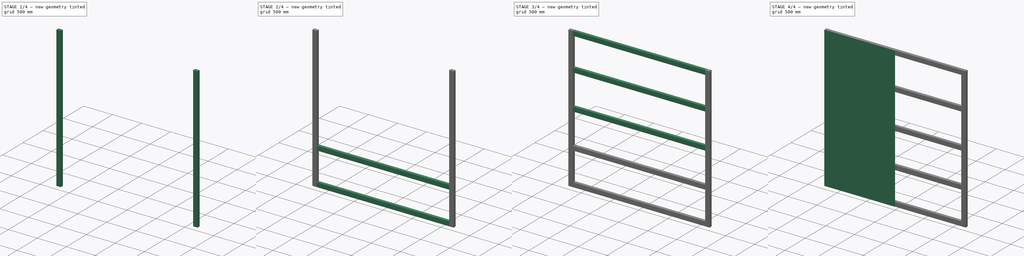
[diagram: build sequence overview — one tinted view per stage of 4, left to right]
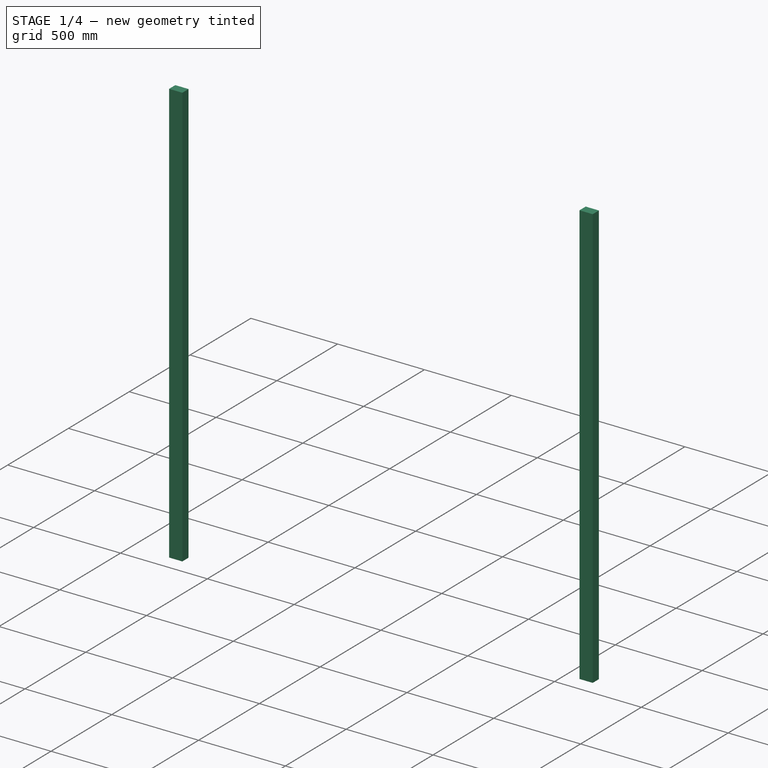
[diagram: stage 1 of 4 — iso view after this stage's code; geometry added in this stage tinted green]
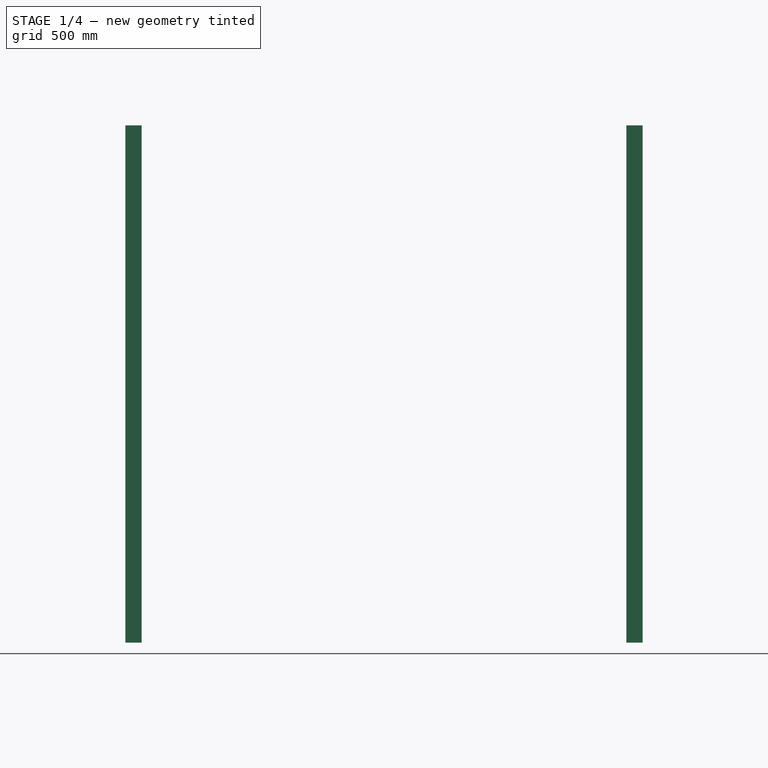
[diagram: stage 1 of 4 — front view after this stage's code; geometry added in this stage tinted green]
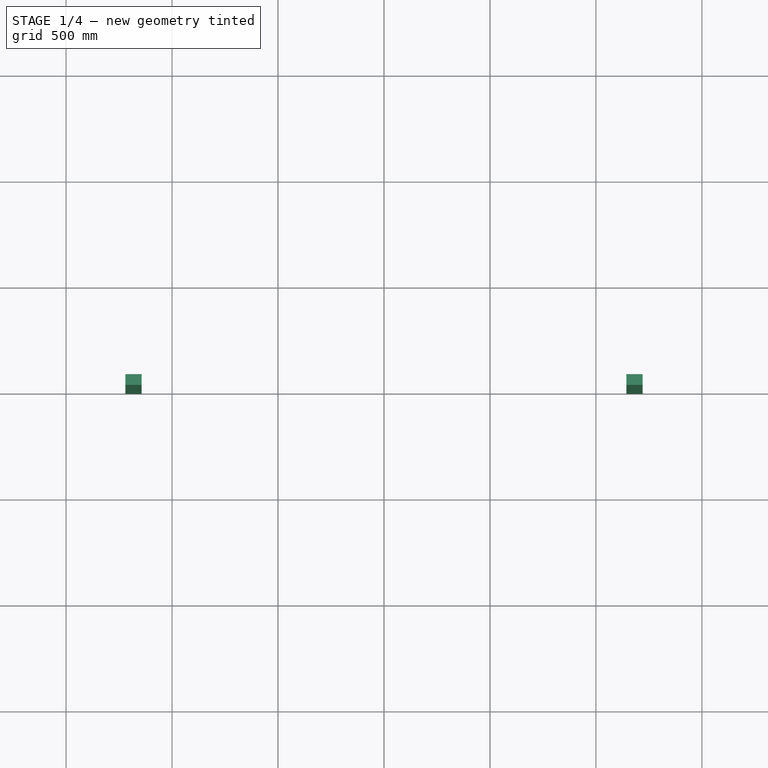
[diagram: stage 1 of 4 — top view after this stage's code; geometry added in this stage tinted green]
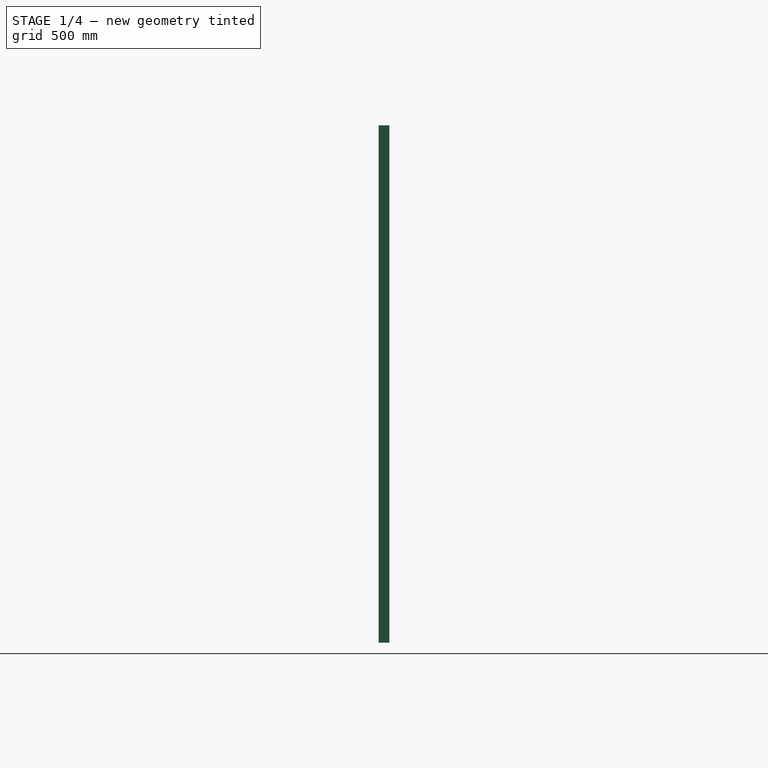
[diagram: stage 1 of 4 — right view after this stage's code; geometry added in this stage tinted green]
FCSTD DOCUMENT  (FreeCAD 0.21R33771 (Git))
Label: FMT_2024_reflector
License: All rights reserved
LicenseURL: http://en.wikipedia.org/wiki/All_rights_reserved
objects: Part::Extrusion×7, Spreadsheet::Sheet×2, Sketcher::SketchObject×2, PartDesign::Pad×1, PartDesign::Body×1, Part::Mirroring×1
note: 13 computed .brp shape members not serialized (recipe doc carries the construction recipe); baked Part::Feature solids carry a one-line shape summary decoded from their .brp

FEATURE [Part::Extrusion] Extrude005  label="vertical_post_left"
  Base = -> Sketch001
  Dir = (0,0,1)
  DirMode = 2
  FaceMakerClass = Part::FaceMakerBullseye
  LengthFwd = 2440
  LengthRev = 0
  Placement = pos=(1181.9,25.4,0) rot=(0,0,1;1.5708rad)
  Solid = true
  Symmetric = true
  expr: .Placement.Base.x = <<d>>.panel_width - <<d>>.profile_2x3_height / 2
  expr: .Placement.Base.y = <<d>>.profile_2x3_width / 2
  expr: LengthFwd = <<d>>.panel_height
FEATURE [Part::Extrusion] Extrude006  label="vertical_post_right"
  Base = -> Sketch001
  Dir = (0,0,1)
  DirMode = 2
  FaceMakerClass = Part::FaceMakerBullseye
  LengthFwd = 2440
  LengthRev = 0
  Placement = pos=(-1181.9,25.4,0) rot=(0,0,1;1.5708rad)
  Solid = true
  Symmetric = true
  expr: .Placement.Base.x = -(<<d>>.panel_width - <<d>>.profile_2x3_height / 2)
  expr: .Placement.Base.y = <<d>>.profile_2x3_width / 2
  expr: LengthFwd = <<d>>.panel_height
FEATURE [Spreadsheet::Sheet] Spreadsheet001  label="BOM"
  cells = A1='Item; B1='Quantity; C1='Cost/Unit; D1='Total Cost; E1='Link; F1='Comments; A2='Turnbuckle M16; B2=4; D2=25; E2='https://www.ebay.co.uk/itm/275171664696?hash=item4011826338:g:jucAAOSw22xiDjIf&amdata=enc%3AAQAIAAAAwMv%2FK89Emx5nN9n%2BDuYte%2B857oGZFu%2Fbt%2FozPLHgO9VXQm0p53P0q4yipXwo3N2rNtSWM3aFZhpicUcEvKqsJrscnIy%2FLn7htTpXb8%2B1y%2BFUXuGMtfkZcA3SvMM%2B3Qrt%2B9S88SuSm%2F2IW9dCg813a0urlc57w1iYvxxIFmZE4RhTtqppw1nMxQFF6tucKWeLk8OsULxM16inzX5n39SVhzvqcMN6oAPfIPsa5ujxmvpqsnZNUBZXyA89cnSEkAg5CQ%3D%3D%7Ctkp%3ABk9SR86no5GvYw; F2='Depending on how much it should be tensioned, it could be 2 or 4 per module; A3='Cable clamps M6 (pack of 10); B3=1; C3=3.99; D3==B3 * C3; E3='https://www.ebay.co.uk/itm/176211818636?hash=item29070af88c:g:JaoAAOSwi1NlIUwk&amdata=enc%3AAQAIAAAA8HcX7B7szZDhgQMEfklizR%2FJKWyt%2FVhWCI0MwiSS0P5DrGNTJrLGB2q0rxlONBTAi6CK%2FCu9Xuq0aCxIx9lfLjtkzLkbjrpyKeCmURnYDHguOjyINOSQY3McpR17xX4reBIp5AO731peRyQosX71cUXgHTyI6vkiScwrZMlA2YOs9iDGcbmTz%2BtPBwr37oEGhlCaVMOX983al5%2BYWz%2FMA6WXyTODuPJisUZKdMnH4gB%2FI%2BenTVYieXkKPsfr5jUBtkTA9ay6amboOa3cUFHG%2BThBR1hjvZJNqP6Wxx9zrUT%2BKncM13aRebBe1Sv3BP84BQ%3D%3D%7Ctkp%3ABk9SR-zX1pGvYw; A4='Steel wire rope 10m; B4=1; C4=16.78; D4==B4 * C4; E4='https://www.ebay.co.uk/itm/144647393147?hash=item21ada80f7b:g:QREAAOSwwjRafW1T&amdata=enc%3AAQAIAAAAwI7ALSP4aFcoNm36LKcryYIhf8gRqamXRfKnU%2FxiwRI0Zvz4GmQwdvUYf%2BFKK2%2FFuv%2BiirYG34PCXOPK9Z%2FuJgSPNmHdynhC%2Bn%2FXaWZIIU4819SNgEiPUniwV9nlUiMpsgCjraVIDqxbifP65p8c%2BGVnogMO9ht0%2FX1NFj4ZFKZ8MYGvV%2BDrJSJUA7J3K6kUQi94wmjrdUU3QcDJ1IUKig1DMnl3iAgVSNrTRntpZE1uu2E5z7W6740wgEiICZNZPw%3D%3D%7Ctkp%3ABk9SR-SF55GvYw; F4='Awkward choice of length. 5m be not enough for a reflector due to tolerances.; A5='Eye bolts 5mm x 50mm (pack of 4); B5=1; C5=7.15; D5==B5 * C5; E5='https://www.ebay.co.uk/itm/201396221999?hash=item2ee426782f:g:MAkAAOSwneRevZ8M&amdata=enc%3AAQAIAAAA4IxCm2zlKy%2BJ4p99rAwEsIdjKrjFI978swtvbsBRfbYNY3I80%2BI0%2BZdpyPDRVAbXWKKmTI3CFse7fgBjPPF8SRbT5hFDSUHy53fJWt%2BtETgu%2FG%2BOasmmBRR41lCEX2Tnt8nUavWVyitr6Wt8YXpsbAh%2Fkp9pl30UIoXey16Sbc5j8dhGumgNQ8H75oSTRkip0GZH6lKiJ8skUic8hur9u1sxFA%2Bq2iS2rxjdtr6pzvSuKgct%2BBG5EajGsPY8drvMIX6q4MHd%2BwIrgau3opKKRKTIC%2BiCx6vRiy9YVYVpfB2E%7Ctkp%3ABk9SR7jB95GvYw; A6='Thimbles (pack of 4); B6=1; C6=3.82; D6==B6 * C6; E6='https://www.ebay.co.uk/itm/154959865358?hash=item241453e60e:g:M2UAAOSwlx9b9VKi&amdata=enc%3AAQAIAAAA4CEeJan0aPV0vM78Kyi0xMw0STcBn4ExJGrqawElnPZRWyXuNCj93k%2FjCJihsU1W8%2BLINMNrX9%2FcbgLTc89JEzgC9912pz9xbEq072nUlZVEHEPBkZoVeq7AEn7FC5rhm0SOlqhVRFpMQfG9G86X5Ry0JqgNkJQrx8b2I4szTn59DKCslN9UBYQ2XorQviof%2B2WFVfjloXLgDLnTieGLtox%2Fufer1LV6R9HuwsLKiG%2BuktsoPMC14ND24plOs3irhDvVrw0W2YFj1VghBRiqTNJ5C9uPnZTEF6F0NmlQ4%2BkX%7Ctkp%3ABFBMlJSQkq9j; C8='Total; D8==D2 + D3 + D4 + D5 + D6
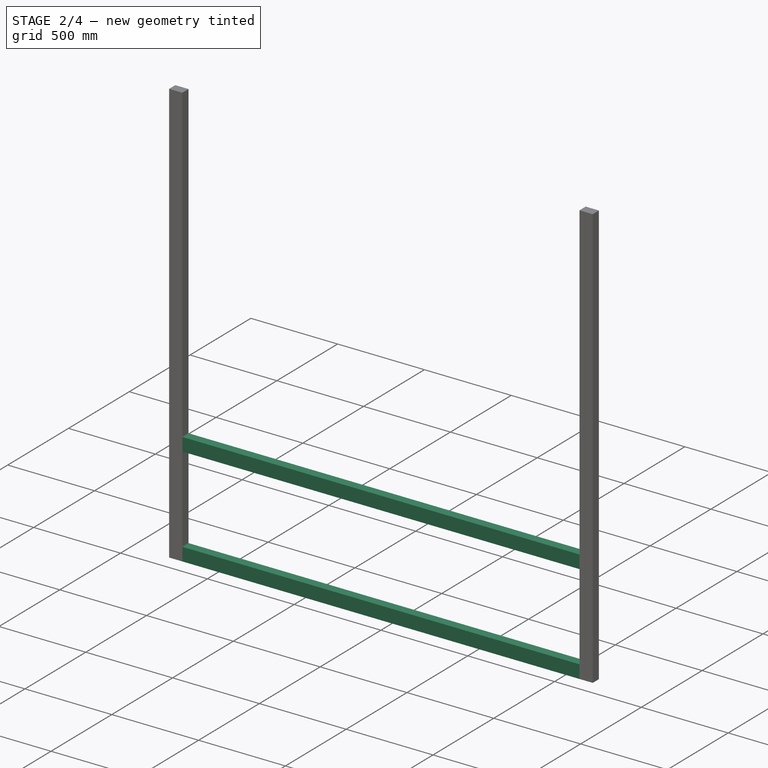
[diagram: stage 2 of 4 — iso view after this stage's code; geometry added in this stage tinted green]
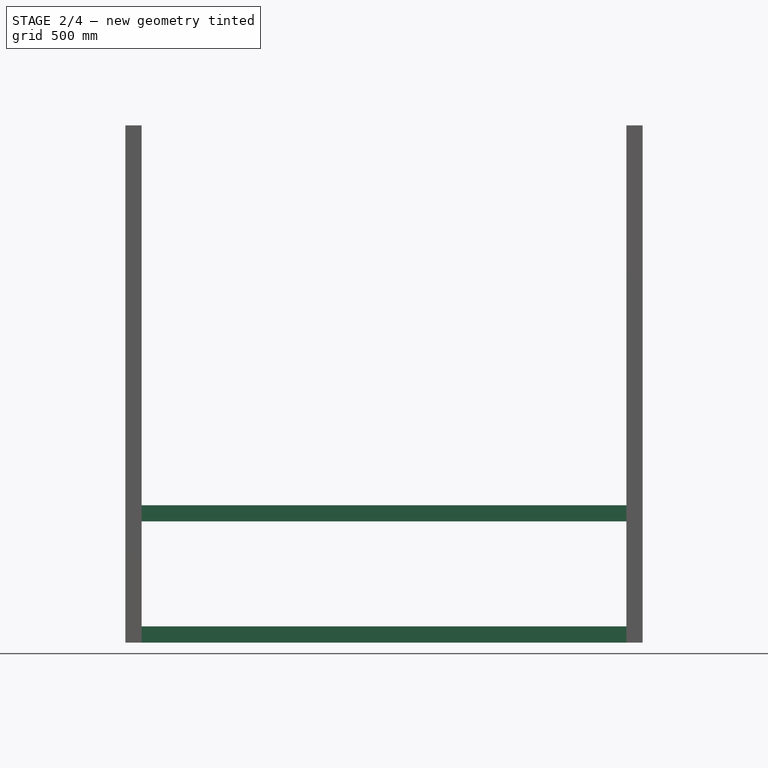
[diagram: stage 2 of 4 — front view after this stage's code; geometry added in this stage tinted green]
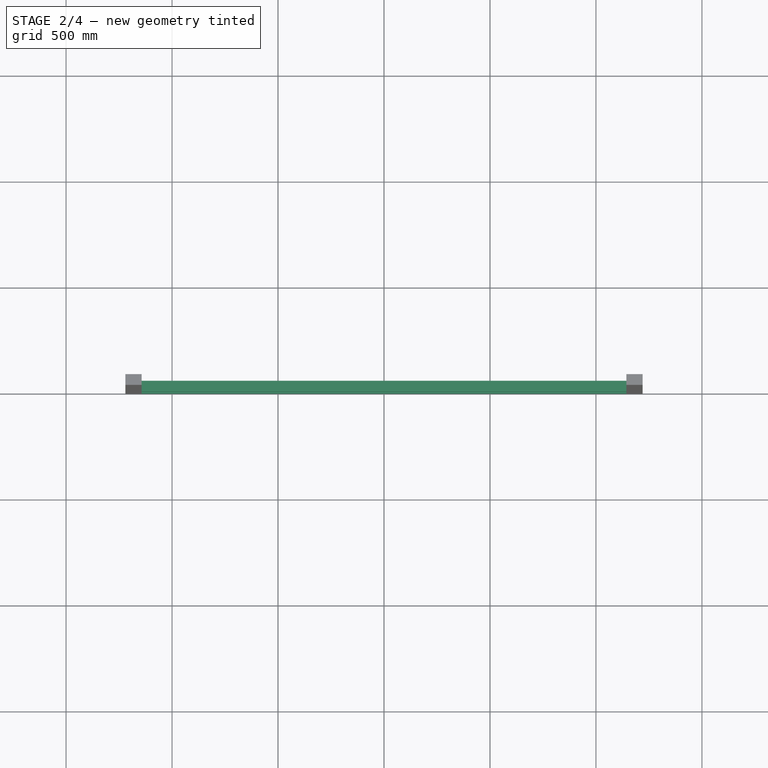
[diagram: stage 2 of 4 — top view after this stage's code; geometry added in this stage tinted green]
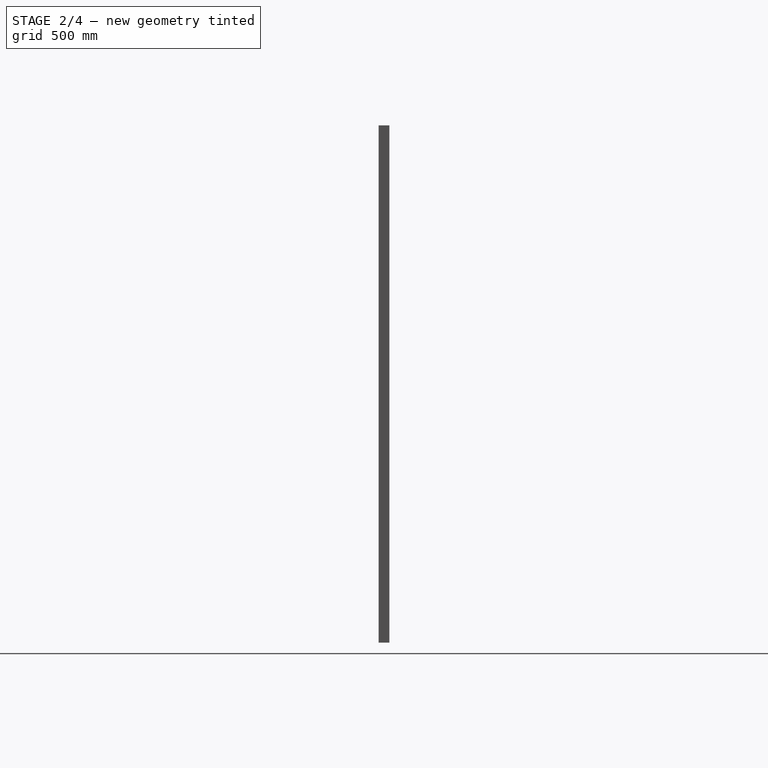
[diagram: stage 2 of 4 — right view after this stage's code; geometry added in this stage tinted green]
FEATURE [Part::Extrusion] Extrude003  label="horizontal_post_mid_bottom"
  Base = -> Sketch001
  Dir = (0,0,1)
  DirMode = 2
  FaceMakerClass = Part::FaceMakerBullseye
  LengthFwd = 2287.6
  LengthRev = 0
  Placement = pos=(0,25.4,-610) rot=(0.57735,0.57735,-0.57735;4.18879rad)
  Solid = true
  Symmetric = true
  expr: .Placement.Base.y = <<d>>.profile_2x3_width / 2
  expr: .Placement.Base.z = -<<d>>.panel_height / 4
  expr: LengthFwd = <<d>>.panel_width * 2 - <<d>>.profile_2x3_height * 2
FEATURE [Part::Extrusion] Extrude004  label="horizontal_post_bottom"
  Base = -> Sketch001
  Dir = (0,0,1)
  DirMode = 2
  FaceMakerClass = Part::FaceMakerBullseye
  LengthFwd = 2287.6
  LengthRev = 0
  Placement = pos=(0,25.4,-1181.9) rot=(0.57735,0.57735,-0.57735;4.18879rad)
  Solid = true
  Symmetric = true
  expr: .Placement.Base.y = <<d>>.profile_2x3_width / 2
  expr: .Placement.Base.z = -(<<d>>.panel_height / 2 - <<d>>.profile_2x3_height / 2)
  expr: LengthFwd = <<d>>.panel_width * 2 - <<d>>.profile_2x3_height * 2
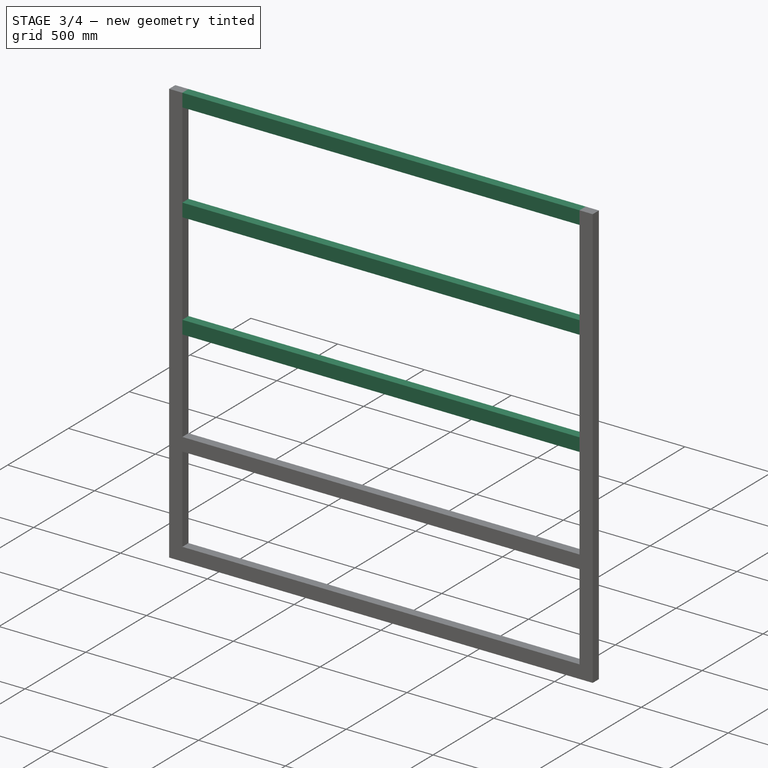
[diagram: stage 3 of 4 — iso view after this stage's code; geometry added in this stage tinted green]
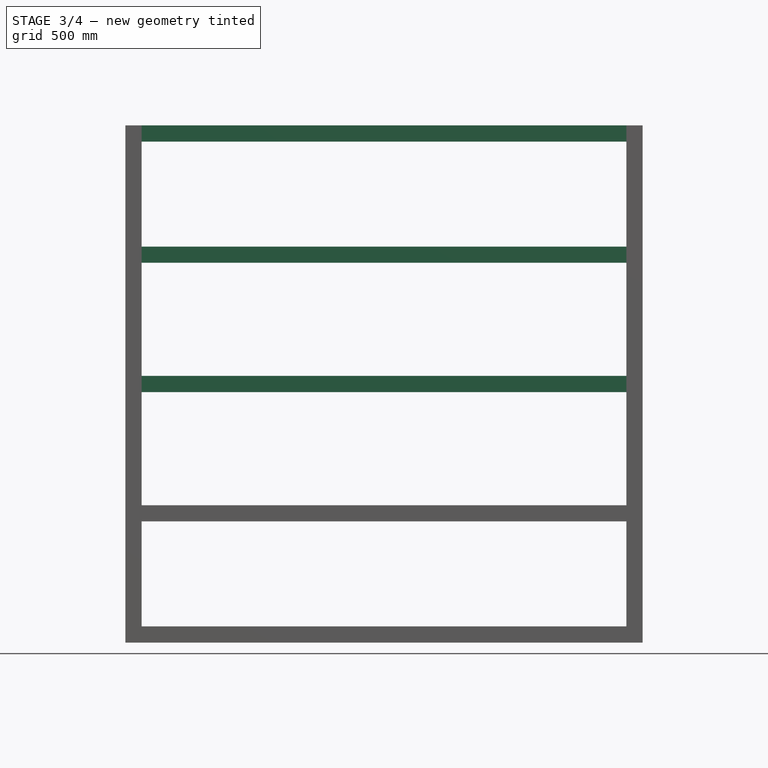
[diagram: stage 3 of 4 — front view after this stage's code; geometry added in this stage tinted green]
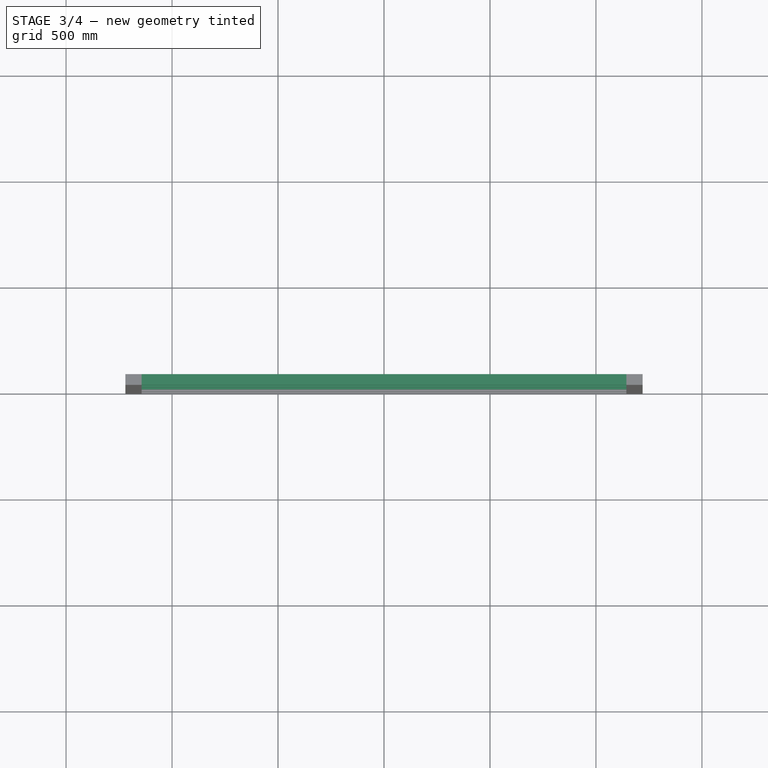
[diagram: stage 3 of 4 — top view after this stage's code; geometry added in this stage tinted green]
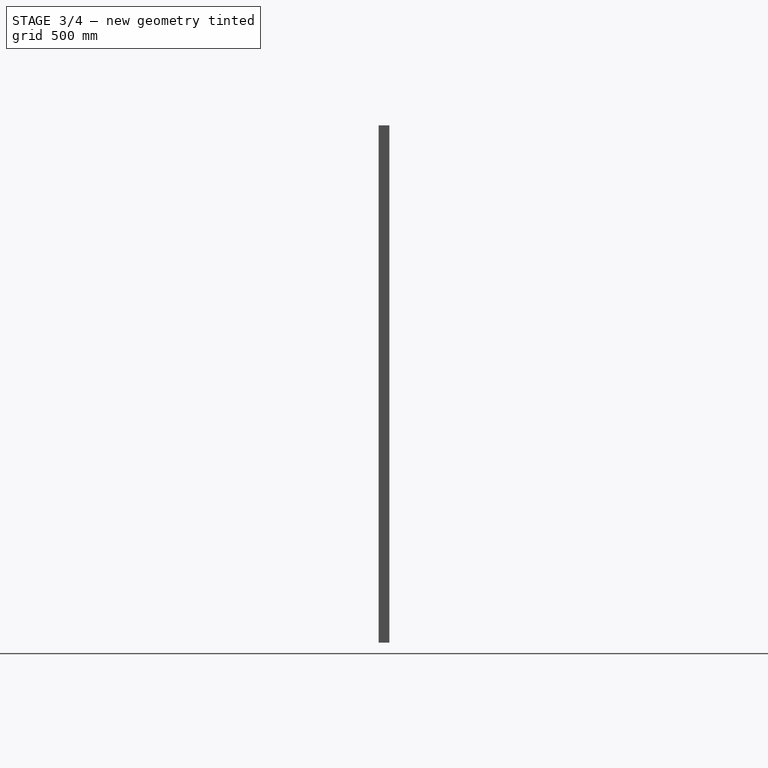
[diagram: stage 3 of 4 — right view after this stage's code; geometry added in this stage tinted green]
FEATURE [Sketcher::SketchObject] Sketch001  label="profile_2x3"
  FullyConstrained = true
  expr: Constraints[8] = <<d>>.profile_2x3_width
  expr: Constraints[9] = <<d>>.profile_2x3_height
  sketch-geometry (4):
    g0: LineSegment StartX=-25.4 StartY=38.1 StartZ=0 EndX=25.4 EndY=38.1 EndZ=0
    g1: LineSegment StartX=25.4 StartY=38.1 StartZ=0 EndX=25.4 EndY=-38.1 EndZ=0
    g2: LineSegment StartX=25.4 StartY=-38.1 StartZ=0 EndX=-25.4 EndY=-38.1 EndZ=0
    g3: LineSegment StartX=-25.4 StartY=-38.1 StartZ=0 EndX=-25.4 EndY=38.1 EndZ=0
  constraints (10):
    c: Coincident(g0,g1)
    c: Coincident(g1,g2)
    c: Coincident(g2,g3)
    c: Coincident(g3,g0)
    c: Horizontal(g2)
    c: Vertical(g3)
    c: Symmetric(g0,g1,g-1)
    c: Symmetric(g0,g0,g-2)
    c: DistanceX(g0,g0) = 50.8
    c: DistanceY(g1,g1) = 76.2
FEATURE [Part::Extrusion] Extrude  label="horizontal_post_mid"
  Base = -> Sketch001
  Dir = (0,0,1)
  DirMode = 2
  FaceMakerClass = Part::FaceMakerBullseye
  LengthFwd = 2287.6
  LengthRev = 0
  Placement = pos=(0,25.4,0) rot=(0.57735,0.57735,-0.57735;4.18879rad)
  Solid = true
  Symmetric = true
  expr: .Placement.Base.y = <<d>>.profile_2x3_width / 2
  expr: LengthFwd = <<d>>.panel_width * 2 - <<d>>.profile_2x3_height * 2
FEATURE [Part::Extrusion] Extrude001  label="horizontal_post_mid_top"
  Base = -> Sketch001
  Dir = (0,0,1)
  DirMode = 2
  FaceMakerClass = Part::FaceMakerBullseye
  LengthFwd = 2287.6
  LengthRev = 0
  Placement = pos=(0,25.4,610) rot=(0.57735,0.57735,-0.57735;4.18879rad)
  Solid = true
  Symmetric = true
  expr: .Placement.Base.y = <<d>>.profile_2x3_width / 2
  expr: .Placement.Base.z = <<d>>.panel_height / 4
  expr: LengthFwd = <<d>>.panel_width * 2 - <<d>>.profile_2x3_height * 2
FEATURE [Part::Extrusion] Extrude002  label="horizontal_post_top"
  Base = -> Sketch001
  Dir = (0,0,1)
  DirMode = 2
  FaceMakerClass = Part::FaceMakerBullseye
  LengthFwd = 2287.6
  LengthRev = 0
  Placement = pos=(0,25.4,1181.9) rot=(0.57735,0.57735,-0.57735;4.18879rad)
  Solid = true
  Symmetric = true
  expr: .Placement.Base.y = <<d>>.profile_2x3_width / 2
  expr: .Placement.Base.z = <<d>>.panel_height / 2 - <<d>>.profile_2x3_height / 2
  expr: LengthFwd = <<d>>.panel_width * 2 - <<d>>.profile_2x3_height * 2
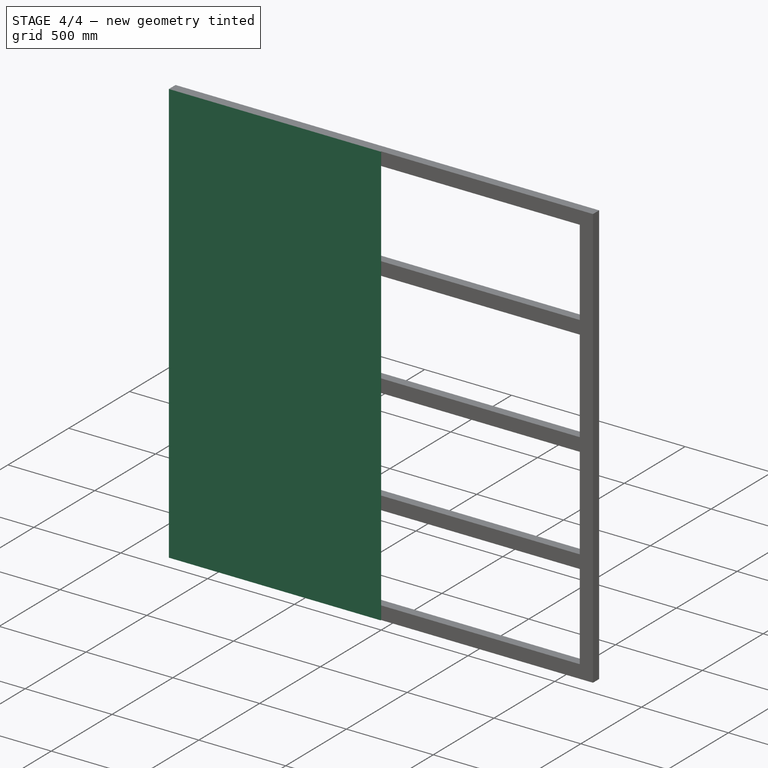
[diagram: stage 4 of 4 — iso view after this stage's code; geometry added in this stage tinted green]
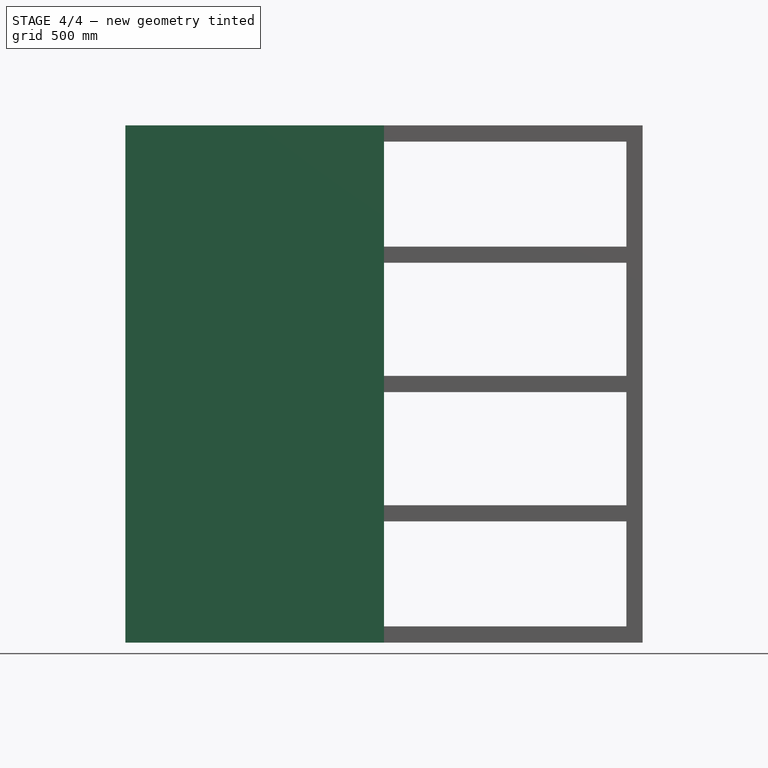
[diagram: stage 4 of 4 — front view after this stage's code; geometry added in this stage tinted green]
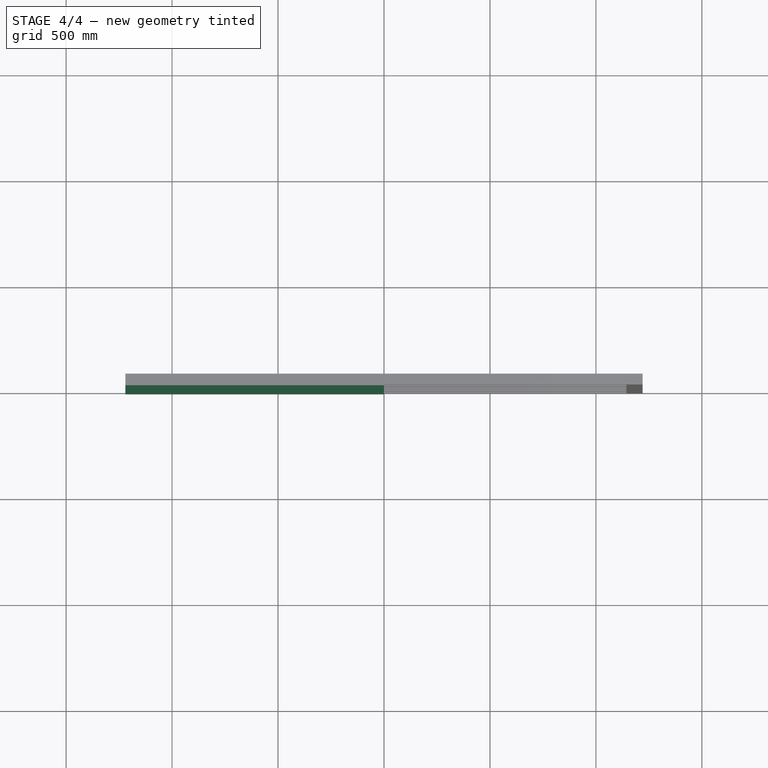
[diagram: stage 4 of 4 — top view after this stage's code; geometry added in this stage tinted green]
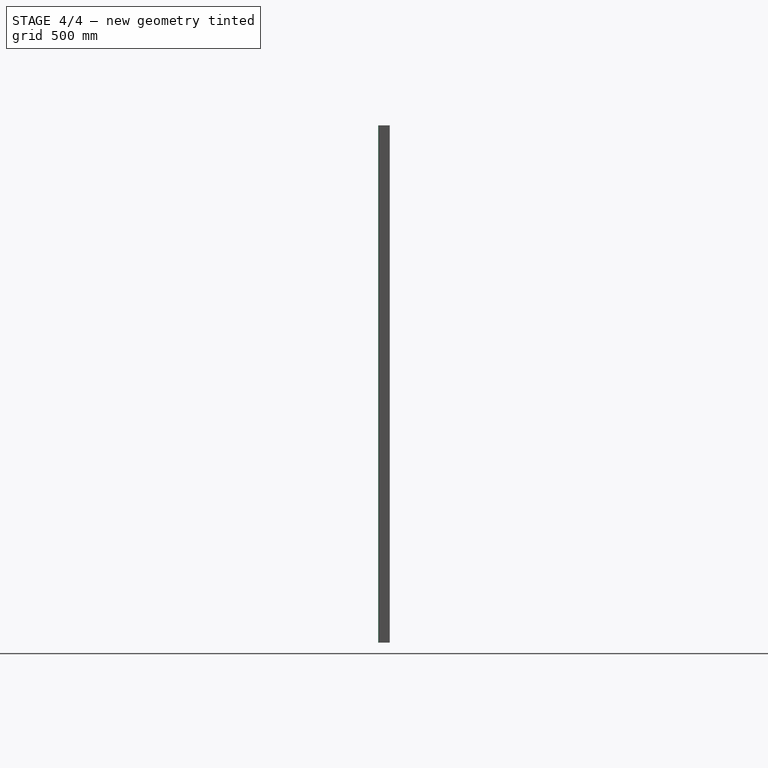
[diagram: stage 4 of 4 — right view after this stage's code; geometry added in this stage tinted green]
FEATURE [Spreadsheet::Sheet] Spreadsheet  label="d"
  cells = A1='panel_width; B1(panel_width)=1220; A2='panel_height; B2(panel_height)=2440; A3='panel_thickness; B3(panel_thickness)=4; A4='profile_2x3_width; B4(profile_2x3_width)=50.8; A5='profile_2x3_height; B5(profile_2x3_height)=76.2
FEATURE [Sketcher::SketchObject] Sketch
  FullyConstrained = true
  MapMode = 5
  Placement = pos=(0,0,0) rot=(1,0,0;1.5708rad)
  Support = -> [XZ_Plane]
  expr: Constraints[10] = <<d>>.panel_width
  expr: Constraints[9] = <<d>>.panel_height
  sketch-geometry (4):
    g0: LineSegment StartX=0 StartY=1220 StartZ=0 EndX=1220 EndY=1220 EndZ=0
    g1: LineSegment StartX=1220 StartY=1220 StartZ=0 EndX=1220 EndY=-1220 EndZ=0
    g2: LineSegment StartX=1220 StartY=-1220 StartZ=0 EndX=0 EndY=-1220 EndZ=0
    g3: LineSegment StartX=0 StartY=-1220 StartZ=0 EndX=0 EndY=1220 EndZ=0
  constraints (11):
    c: Coincident(g0,g1)
    c: Coincident(g1,g2)
    c: Coincident(g2,g3)
    c: Coincident(g3,g0)
    c: Horizontal(g0)
    c: Horizontal(g2)
    c: Vertical(g3)
    c: PointOnObject(g0,g-2)
    c: Symmetric(g0,g1,g-1)
    c: DistanceY(g1,g1) = 2440
    c: DistanceX(g0,g0) = 1220
FEATURE [PartDesign::Pad] Pad
  Direction = (0,-1,2e-16)
  Length = 4
  Length2 = 10
  Placement = pos=(0,0,0) rot=(1,0,0;1.5708rad)
  Profile = -> Sketch
  ReferenceAxis = -> Sketch [N_Axis]
  Type = 0
  expr: Length = <<d>>.panel_thickness
FEATURE [PartDesign::Body] Body  label="panel_left"
  Group = -> [Sketch,Pad]
  Origin = -> Origin
  Tip = -> Pad
FEATURE [Part::Mirroring] Part__Mirroring  label="panel_right"
  Base = (0,0,0)
  Normal = (1,0,0)
  Source = -> Body
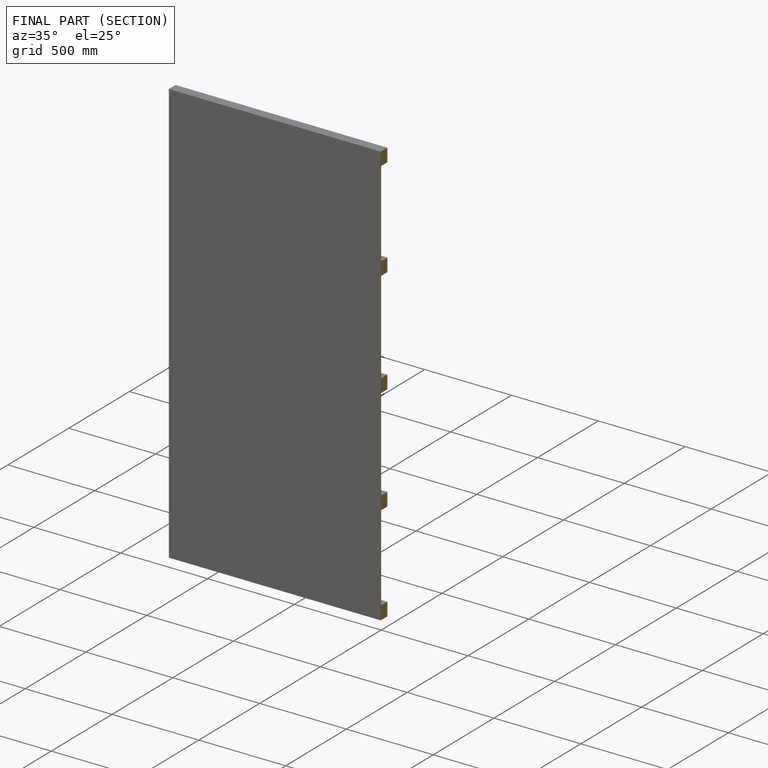
[diagram: finished part — half-section view (interior)]
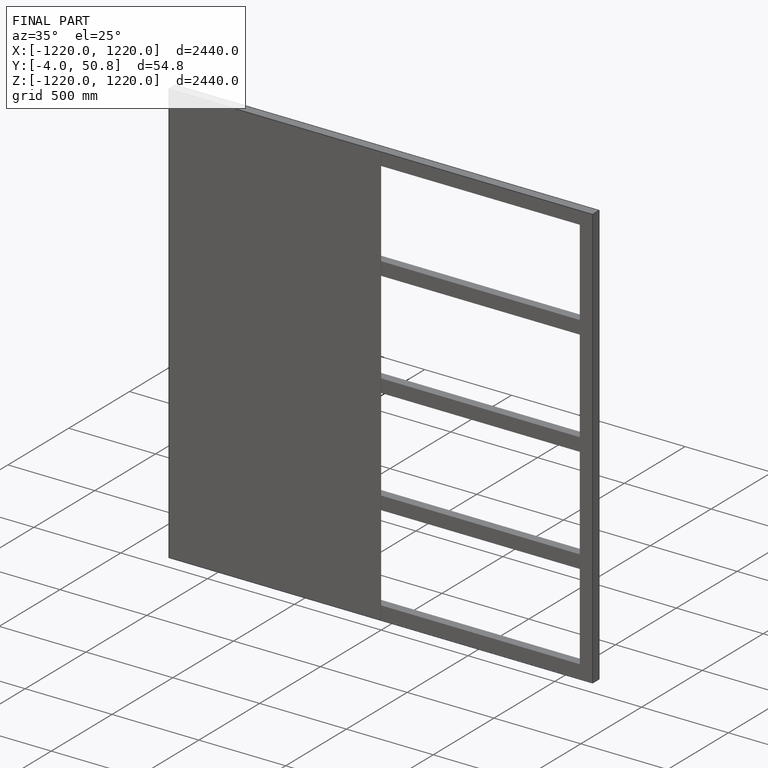
[diagram: finished part — iso view with bounding-box wireframe]
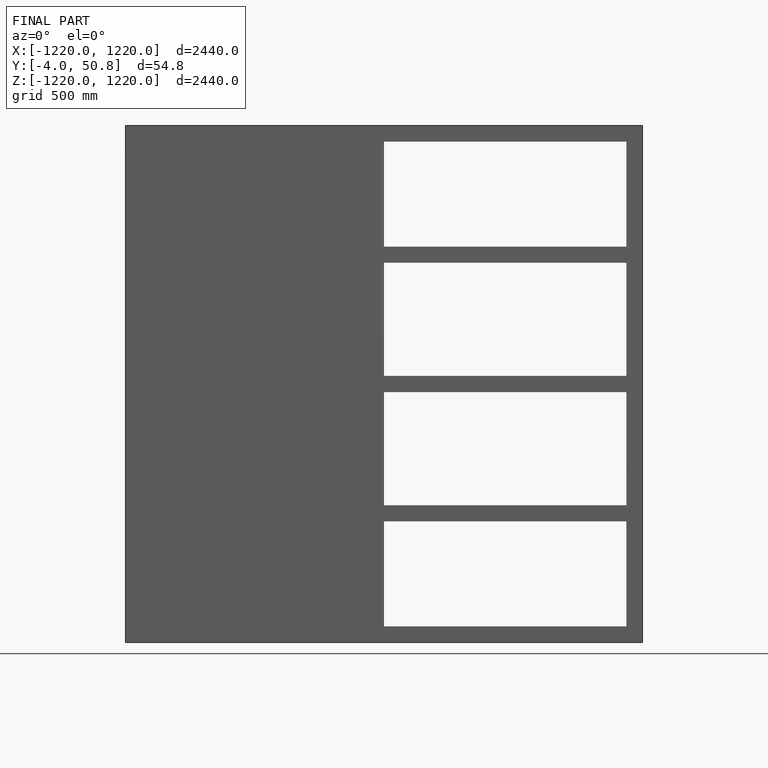
[diagram: finished part — front view with bounding-box wireframe]
